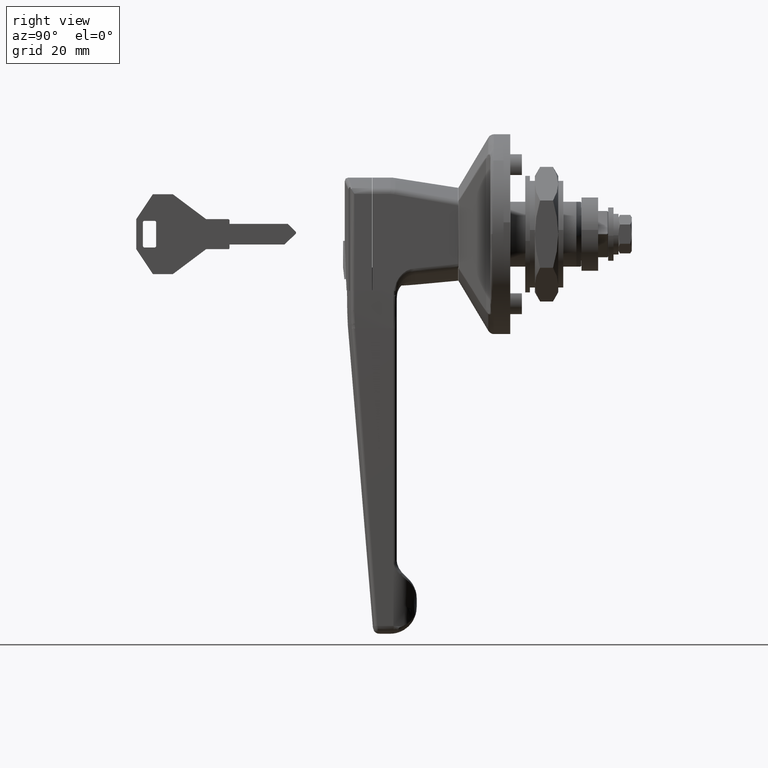
[diagram: clean part render]
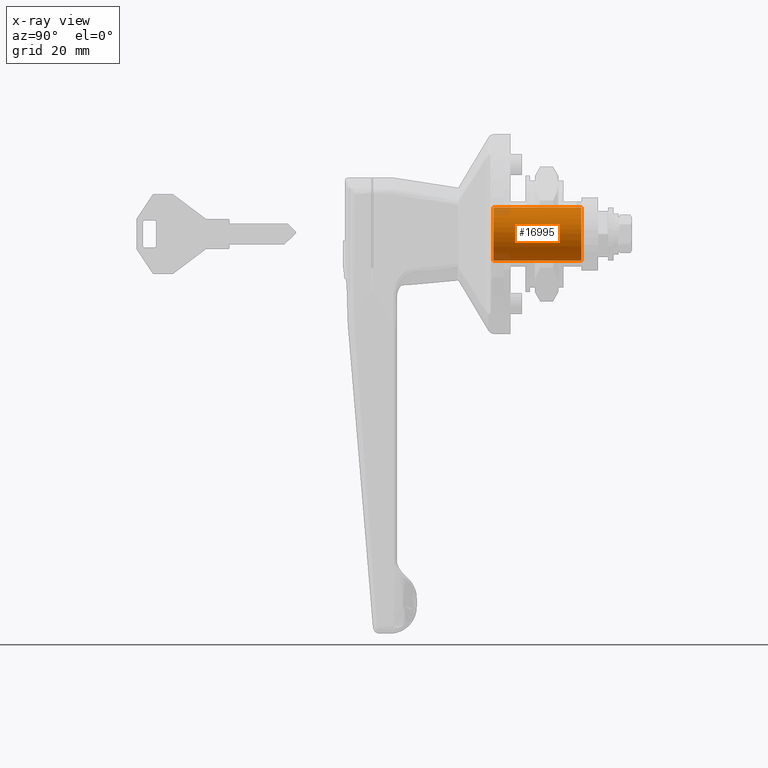
[diagram: x-ray — body ghosted, one internal face saturated and labeled with its STEP entity id]
A machine part, right view, then the same camera in x-ray: the body is ghosted and one INTERNAL B-rep face — a face not visible from any outside direction — is saturated and labeled: STEP entity #16995.
In plain terms, the highlighted face is a freeform B-spline surface patch.
Its self-contained STEP definition (entity closure, byte-faithful):
#16872=CARTESIAN_POINT('',(-4.761250000001136,6.285012620900386,4.949607697093057));
#16873=CARTESIAN_POINT('',(-4.761250000001135,6.143356975104874,5.129482058079175));
#16874=CARTESIAN_POINT('',(-4.761250000001135,5.991645766312015,5.300960385725898));
#16875=CARTESIAN_POINT('',(-4.761250000001135,0.690685380586117,11.292606152037912));
#16876=CARTESIAN_POINT('',(-4.761250000001135,-5.300960385725898,5.991645766312015));
#16877=CARTESIAN_POINT('',(-4.761250000001135,-11.292606152037912,0.690685380586117));
#16878=CARTESIAN_POINT('',(-4.761250000001135,-5.991645766312015,-5.300960385725898));
#16879=CARTESIAN_POINT('',(-4.761250000001135,-0.690685380586117,-11.292606152037912));
#16880=CARTESIAN_POINT('',(-4.761250000001135,5.300960385725898,-5.991645766312015));
#16881=CARTESIAN_POINT('',(23.027781250000025,6.285012620900386,4.949607697093057));
#16882=CARTESIAN_POINT('',(23.027781250000036,6.143356975104874,5.129482058079175));
#16883=CARTESIAN_POINT('',(23.027781250000029,5.991645766312015,5.300960385725898));
#16884=CARTESIAN_POINT('',(23.027781250000025,0.690685380586117,11.292606152037912));
#16885=CARTESIAN_POINT('',(23.027781250000029,-5.300960385725898,5.991645766312015));
#16886=CARTESIAN_POINT('',(23.027781250000025,-11.292606152037912,0.690685380586117));
#16887=CARTESIAN_POINT('',(23.027781250000029,-5.991645766312015,-5.300960385725898));
#16888=CARTESIAN_POINT('',(23.027781250000025,-0.690685380586117,-11.292606152037912));
#16889=CARTESIAN_POINT('',(23.027781250000029,5.300960385725898,-5.991645766312015));
#16897=(BOUNDED_SURFACE()B_SPLINE_SURFACE(2,1,((#16872,#16881),(#16873,#16882),(#16874,#16883),(#16875,#16884),(#16876,#16885),(#16877,#16886),(#16878,#16887),(#16879,#16888),(#16880,#16889)),.UNSPECIFIED.,.F.,.F.,.U.)B_SPLINE_SURFACE_WITH_KNOTS((3,2,2,2,3),(2,2),(0.0,0.530193359837562,13.785027355776601,27.039861351715629,40.294695347654667),(0.0,27.789031250001170),.UNSPECIFIED.)GEOMETRIC_REPRESENTATION_ITEM()RATIONAL_B_SPLINE_SURFACE(((0.977505800795127,0.977505800795127),(0.988284271247462,0.988284271247462),(1.0,1.0),(0.707106781186548,0.707106781186548),(1.0,1.0),(0.707106781186548,0.707106781186548),(1.0,1.0),(0.707106781186548,0.707106781186548),(1.0,1.0)))REPRESENTATION_ITEM('')SURFACE());
#16898=CARTESIAN_POINT('',(-4.100000000000726,6.285018474671052,4.949600263956071));
#16899=VERTEX_POINT('',#16898);
#16900=CARTESIAN_POINT('',(-4.100000000001105,0.0,8.0));
#16901=VERTEX_POINT('',#16900);
#16902=CARTESIAN_POINT('',(-4.100000000000725,6.285018474671051,4.949600263956071));
#16903=CARTESIAN_POINT('',(-4.100000000001105,3.882756747120601,8.0));
#16904=CARTESIAN_POINT('',(-4.100000000001105,0.0,8.0));
#16912=(BOUNDED_CURVE()B_SPLINE_CURVE(2,(#16902,#16903,#16904),.UNSPECIFIED.,.F.,.U.)B_SPLINE_CURVE_WITH_KNOTS((3,3),(0.857127361811725,1.0),.UNSPECIFIED.)CURVE()GEOMETRIC_REPRESENTATION_ITEM()RATIONAL_B_SPLINE_CURVE((0.856547285989431,0.832614292482666,1.0))REPRESENTATION_ITEM(''));
#16913=EDGE_CURVE('',#16899,#16901,#16912,.T.);
#16914=ORIENTED_EDGE('',*,*,#16913,.F.);
#16915=CARTESIAN_POINT('',(22.350000000000001,6.285018404171154,4.949600353477286));
#16916=VERTEX_POINT('',#16915);
#16917=CARTESIAN_POINT('',(-4.100000000000726,6.285018474671052,4.949600263956071));
#16918=CARTESIAN_POINT('',(22.350000000000001,6.285018404171154,4.949600353477286));
#16919=QUASI_UNIFORM_CURVE('',1,(#16917,#16918),.UNSPECIFIED.,.F.,.U.);
#16920=EDGE_CURVE('',#16899,#16916,#16919,.T.);
#16921=ORIENTED_EDGE('',*,*,#16920,.T.);
#16922=CARTESIAN_POINT('',(22.350000000000001,-8.0,0.0));
#16923=VERTEX_POINT('',#16922);
#16924=CARTESIAN_POINT('',(22.350000000000001,6.285018404171154,4.949600353477286));
#16925=CARTESIAN_POINT('',(22.350000000000005,3.882756676725470,8.0));
#16926=CARTESIAN_POINT('',(22.350000000000001,0.0,8.0));
#16927=CARTESIAN_POINT('',(22.350000000000001,-8.0,8.0));
#16928=CARTESIAN_POINT('',(22.350000000000001,-8.0,0.0));
#16936=(BOUNDED_CURVE()B_SPLINE_CURVE(2,(#16924,#16925,#16926,#16927,#16928),.UNSPECIFIED.,.F.,.U.)B_SPLINE_CURVE_WITH_KNOTS((3,2,3),(0.107127363968453,0.250000000000000,0.500000000000000),.UNSPECIFIED.)CURVE()GEOMETRIC_REPRESENTATION_ITEM()RATIONAL_B_SPLINE_CURVE((0.856547285266872,0.832614295009430,1.0,0.707106781186548,1.0))REPRESENTATION_ITEM(''));
#16937=EDGE_CURVE('',#16916,#16923,#16936,.T.);
#16938=ORIENTED_EDGE('',*,*,#16937,.T.);
#16939=CARTESIAN_POINT('',(22.349999999999991,5.300957923185859,-5.991647944981601));
#16940=VERTEX_POINT('',#16939);
#16941=CARTESIAN_POINT('',(22.350000000000001,-8.0,0.0));
#16942=CARTESIAN_POINT('',(22.350000000000001,-8.0,-8.0));
#16943=CARTESIAN_POINT('',(22.350000000000001,0.0,-8.0));
#16944=CARTESIAN_POINT('',(22.349999999999994,3.030926989604489,-8.0));
#16945=CARTESIAN_POINT('',(22.349999999999998,5.300957923185859,-5.991647944981601));
#16953=(BOUNDED_CURVE()B_SPLINE_CURVE(2,(#16941,#16942,#16943,#16944,#16945),.UNSPECIFIED.,.F.,.U.)B_SPLINE_CURVE_WITH_KNOTS((3,2,3),(0.500000000000000,0.750000000000000,0.865779825987258),.UNSPECIFIED.)CURVE()GEOMETRIC_REPRESENTATION_ITEM()RATIONAL_B_SPLINE_CURVE((1.0,0.707106781186548,1.0,0.864355496371722,0.854350168953125))REPRESENTATION_ITEM(''));
#16954=EDGE_CURVE('',#16923,#16940,#16953,.T.);
#16955=ORIENTED_EDGE('',*,*,#16954,.T.);
#16956=CARTESIAN_POINT('',(-4.100000000001225,5.300956082785472,-5.991649573226615));
#16957=VERTEX_POINT('',#16956);
#16958=CARTESIAN_POINT('',(-4.100000000001225,5.300956082785472,-5.991649573226615));
#16959=CARTESIAN_POINT('',(22.349999999999991,5.300957923185859,-5.991647944981601));
#16960=QUASI_UNIFORM_CURVE('',1,(#16958,#16959),.UNSPECIFIED.,.F.,.U.);
#16961=EDGE_CURVE('',#16957,#16940,#16960,.T.);
#16962=ORIENTED_EDGE('',*,*,#16961,.F.);
#16963=CARTESIAN_POINT('',(-4.100000000001105,0.0,-8.0));
#16964=VERTEX_POINT('',#16963);
#16965=CARTESIAN_POINT('',(-4.100000000001105,0.0,-8.0));
#16966=CARTESIAN_POINT('',(-4.100000000001105,3.030925584602844,-8.0));
#16967=CARTESIAN_POINT('',(-4.100000000001225,5.300956082785473,-5.991649573226616));
#16975=(BOUNDED_CURVE()B_SPLINE_CURVE(2,(#16965,#16966,#16967),.UNSPECIFIED.,.F.,.U.)B_SPLINE_CURVE_WITH_KNOTS((3,3),(0.500000000000000,0.615779779597012),.UNSPECIFIED.)CURVE()GEOMETRIC_REPRESENTATION_ITEM()RATIONAL_B_SPLINE_CURVE((1.0,0.864355550721276,0.854350176970942))REPRESENTATION_ITEM(''));
#16976=EDGE_CURVE('',#16964,#16957,#16975,.T.);
#16977=ORIENTED_EDGE('',*,*,#16976,.F.);
#16978=CARTESIAN_POINT('',(-4.100000000001105,0.0,8.0));
#16979=CARTESIAN_POINT('',(-4.100000000001105,-8.0,8.0));
#16980=CARTESIAN_POINT('',(-4.100000000001105,-8.0,0.0));
#16981=CARTESIAN_POINT('',(-4.100000000001105,-8.0,-8.0));
#16982=CARTESIAN_POINT('',(-4.100000000001105,0.0,-8.0));
#16990=(BOUNDED_CURVE()B_SPLINE_CURVE(2,(#16978,#16979,#16980,#16981,#16982),.UNSPECIFIED.,.F.,.U.)B_SPLINE_CURVE_WITH_KNOTS((3,2,3),(0.0,0.250000000000000,0.500000000000000),.UNSPECIFIED.)CURVE()GEOMETRIC_REPRESENTATION_ITEM()RATIONAL_B_SPLINE_CURVE((1.0,0.707106781186548,1.0,0.707106781186548,1.0))REPRESENTATION_ITEM(''));
#16991=EDGE_CURVE('',#16901,#16964,#16990,.T.);
#16992=ORIENTED_EDGE('',*,*,#16991,.F.);
#16993=EDGE_LOOP('',(#16914,#16921,#16938,#16955,#16962,#16977,#16992));
#16994=FACE_OUTER_BOUND('',#16993,.T.);
#16995=ADVANCED_FACE('',(#16994),#16897,.F.);